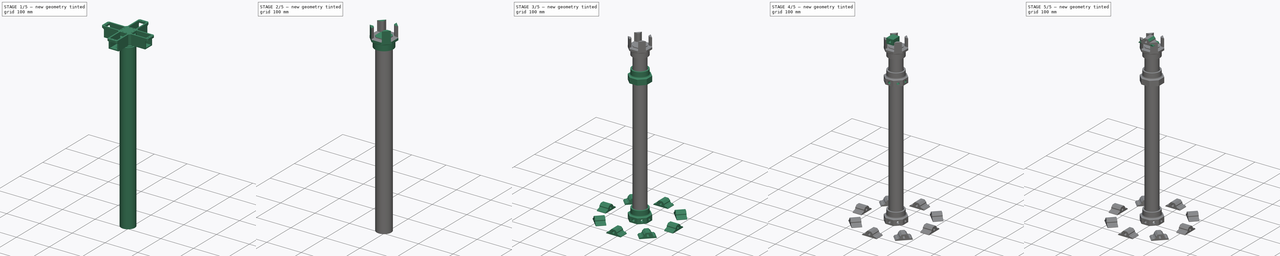
[diagram: build sequence overview — one tinted view per stage of 5, left to right]
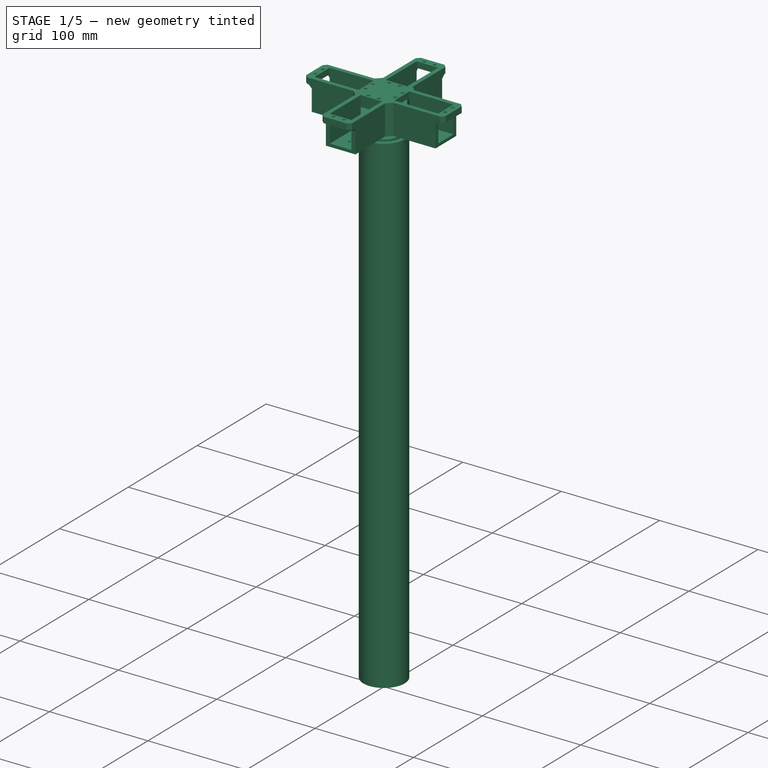
[diagram: stage 1 of 5 — iso view after this stage's code; geometry added in this stage tinted green]
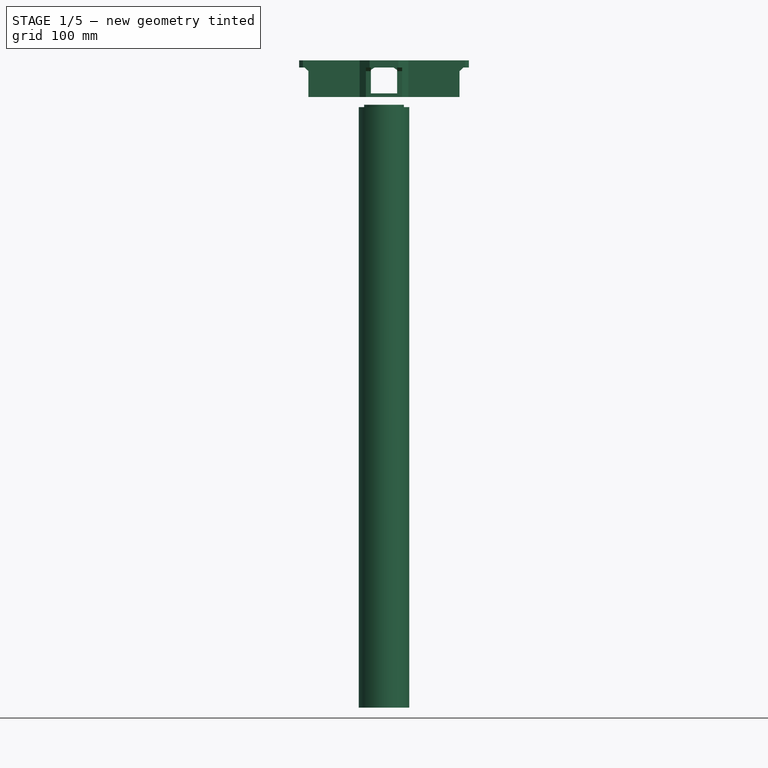
[diagram: stage 1 of 5 — front view after this stage's code; geometry added in this stage tinted green]
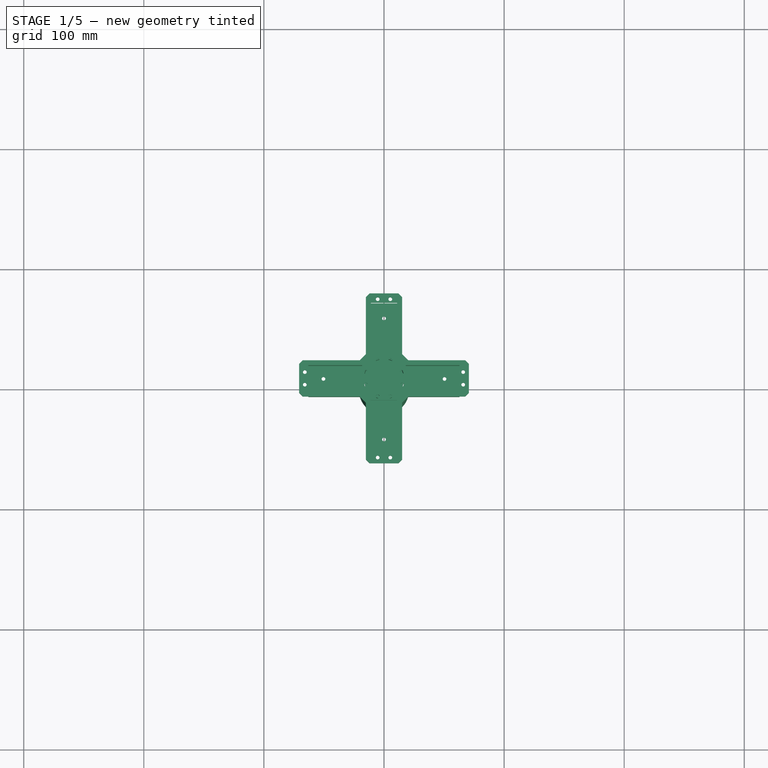
[diagram: stage 1 of 5 — top view after this stage's code; geometry added in this stage tinted green]
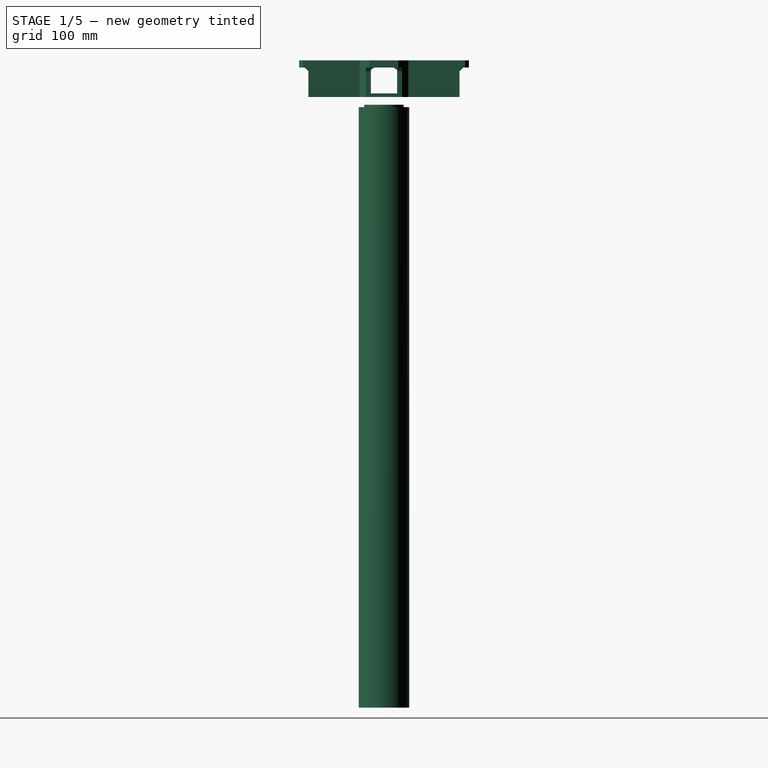
[diagram: stage 1 of 5 — right view after this stage's code; geometry added in this stage tinted green]
FCSTD DOCUMENT  (FreeCAD 0.16R6264 (Git))
Label: support
License: All rights reserved
LicenseURL: http://en.wikipedia.org/wiki/All_rights_reserved
objects: Sketcher::SketchObject×13, Part::Feature×12, PartDesign::Pocket×7, PartDesign::Pad×6, PartDesign::Fillet×5, Part::Cut×2, PartDesign::Chamfer×2, Part::Cylinder×2, Part::FeaturePython×1, Part::MultiFuse×1
note: 64 computed .brp shape members not serialized (recipe doc carries the construction recipe); baked Part::Feature solids carry a one-line shape summary decoded from their .brp

FEATURE [Part::Feature] Pad001007004004002003004004002009  label="Pad001007004004002003004004002016"
  shape: bbox 136 x 136 x 30.5 mm, 95 faces (baked)
FEATURE [Sketcher::SketchObject] Sketch
  Placement = pos=(0,0,-34) rot=(-1,0,0;3.14159rad)
  sketch-geometry (1):
    g0: Circle CenterX=0 CenterY=0 CenterZ=0 NormalX=0 NormalY=0 NormalZ=1 Radius=16.5
  constraints (2):
    c: Coincident(g0,g-1)
    c: Radius(g0) = 16.5
FEATURE [PartDesign::Pad] Pad
  Length = 30
  Length2 = 100
  Placement = pos=(0,0,-34) rot=(-1,0,0;3.14159rad)
  Sketch = -> Sketch
  Type = 0
FEATURE [Part::FeaturePython] Clone  label="Clone of Pad001007004004002003004004002016"  # Draft clone (typed FeaturePython)
  Objects = -> [Pad001007004004002003004004002009]
  Scale = (1.04,1.04,1)
FEATURE [Part::Cylinder] Cylinder  label="Cilindro"
  Angle = 360
  Height = 500
  Placement = pos=(0,0,-536) rot=(0,0,1;0rad)
  Radius = 21
FEATURE [Part::Cylinder] Cylinder001  label="Cilindro001"
  Angle = 360
  Height = 500
  Placement = pos=(0,0,-536) rot=(0,0,1;0rad)
  Radius = 17
FEATURE [Part::Cut] Cut001
  Base = -> Cylinder
  Tool = -> Cylinder001
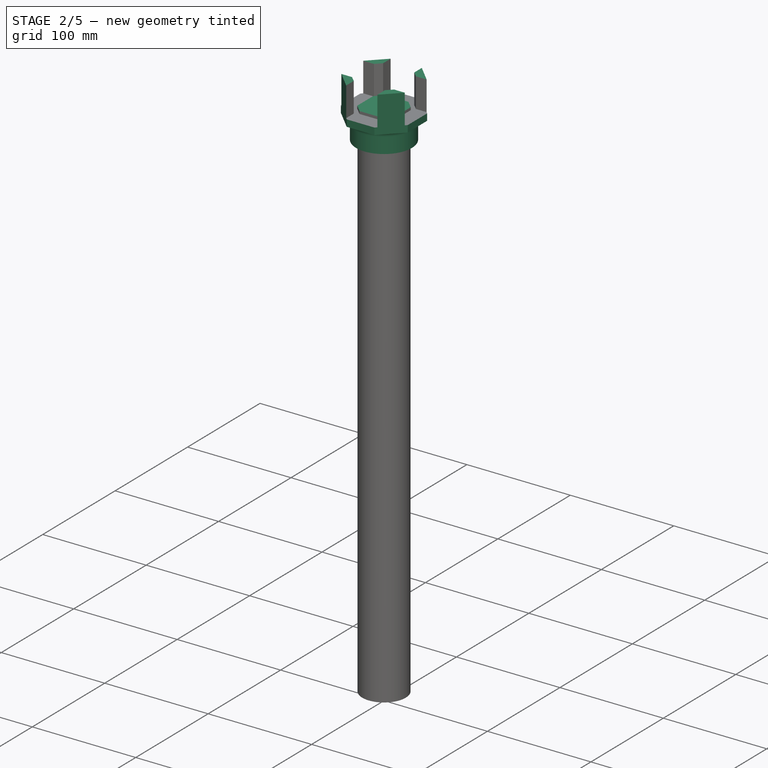
[diagram: stage 2 of 5 — iso view after this stage's code; geometry added in this stage tinted green]
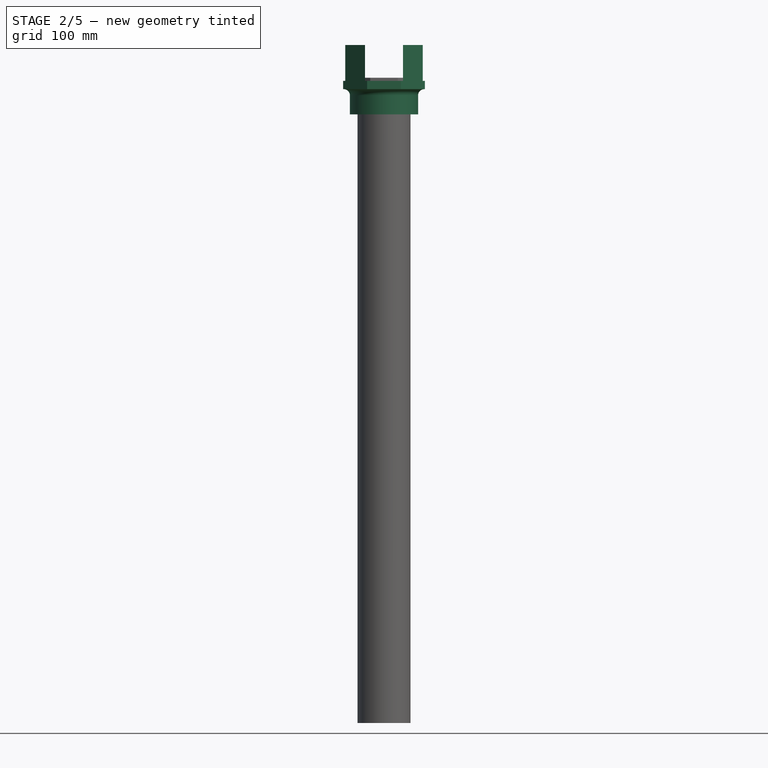
[diagram: stage 2 of 5 — front view after this stage's code; geometry added in this stage tinted green]
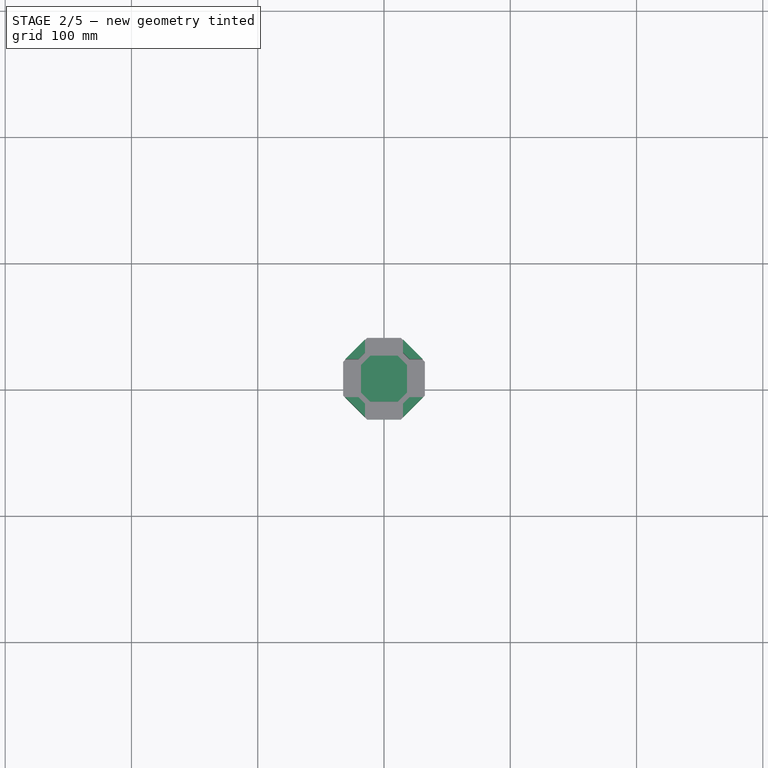
[diagram: stage 2 of 5 — top view after this stage's code; geometry added in this stage tinted green]
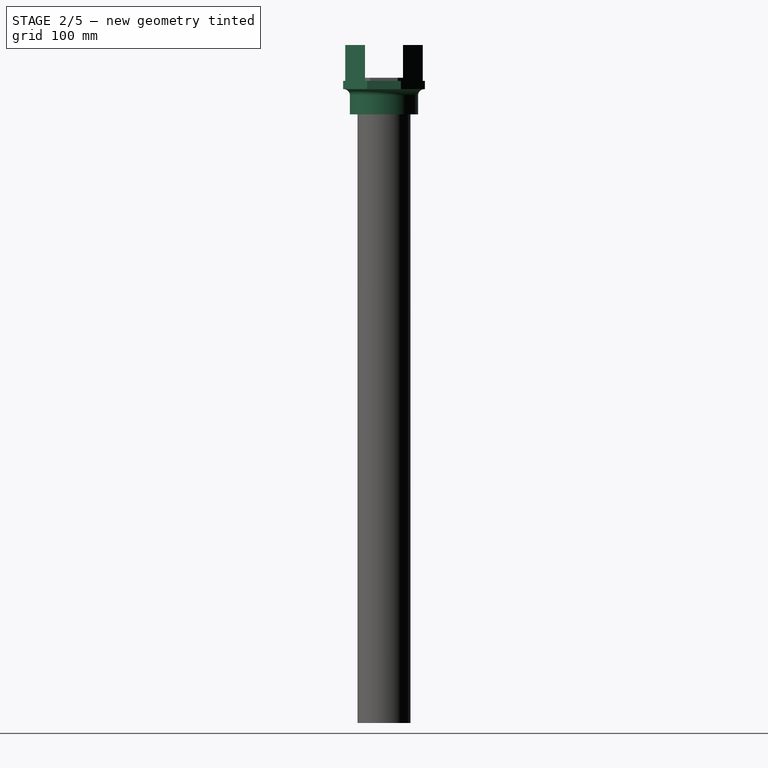
[diagram: stage 2 of 5 — right view after this stage's code; geometry added in this stage tinted green]
FEATURE [Sketcher::SketchObject] Sketch001
  Placement = pos=(0,0,-34) rot=(0,0,1;0rad)
  Support = -> Pad [Face2]
  sketch-geometry (9):
    g0: LineSegment StartX=32.3358 StartY=13.3939 StartZ=0 EndX=13.3939 EndY=32.3358 EndZ=0
    g1: LineSegment StartX=13.3939 StartY=32.3358 StartZ=0 EndX=-13.3939 EndY=32.3358 EndZ=0
    g2: LineSegment StartX=-13.3939 StartY=32.3358 StartZ=0 EndX=-32.3358 EndY=13.3939 EndZ=0
    g3: LineSegment StartX=-32.3358 StartY=13.3939 StartZ=0 EndX=-32.3358 EndY=-13.3939 EndZ=0
    g4: LineSegment StartX=-32.3358 StartY=-13.3939 StartZ=0 EndX=-13.3939 EndY=-32.3358 EndZ=0
    g5: LineSegment StartX=-13.3939 StartY=-32.3358 StartZ=0 EndX=13.3939 EndY=-32.3358 EndZ=0
    g6: LineSegment StartX=13.3939 StartY=-32.3358 StartZ=0 EndX=32.3358 EndY=-13.3939 EndZ=0
    g7: LineSegment StartX=32.3358 StartY=-13.3939 StartZ=0 EndX=32.3358 EndY=13.3939 EndZ=0
    g8: Circle [constr] CenterX=0 CenterY=0 CenterZ=0 NormalX=0 NormalY=0 NormalZ=1 Radius=35
  constraints (20):
    c: Coincident(g0,g1)
    c: Coincident(g1,g2)
    c: Coincident(g2,g3)
    c: Coincident(g3,g4)
    c: Coincident(g4,g5)
    c: Coincident(g5,g6)
    c: Coincident(g6,g7)
    c: Coincident(g7,g0)
    c: Equal(g0, g1-g7) x7
    c: PointOnObject(g0,g8)
    c: PointOnObject(g1,g8)
    c: PointOnObject(g2,g8)
    c: PointOnObject(g3,g8)
    c: PointOnObject(g4,g8)
    c: PointOnObject(g5,g8)
    c: PointOnObject(g6,g8)
    c: PointOnObject(g7,g8)
    c: Coincident(g8,g-1)
    c: Horizontal(g1)
    c: Radius(g8) = 35
FEATURE [PartDesign::Pad] Pad001007004004002003004004002010
  Length = 35
  Length2 = 100
  Placement = pos=(0,0,-34) rot=(-1,0,0;3.14159rad)
  Sketch = -> Sketch001
  Type = 0
FEATURE [Part::Cut] Cut
  Base = -> Pad001007004004002003004004002010
  Tool = -> Clone
FEATURE [Sketcher::SketchObject] Sketch002
  Placement = pos=(0,0,1) rot=(0,0,1;0rad)
  Support = -> Cut [Face59]
  sketch-geometry (16):
    g0: LineSegment StartX=-12.9317 StartY=36.7371 StartZ=0 EndX=-12.9317 EndY=18.9459 EndZ=0
    g1: LineSegment StartX=-12.9317 StartY=18.9459 StartZ=0 EndX=-17.108 EndY=13.9343 EndZ=0
    g2: LineSegment StartX=-17.108 StartY=13.9343 StartZ=0 EndX=-34.2309 EndY=12.4309 EndZ=0
    g3: LineSegment StartX=-34.2309 StartY=12.4309 StartZ=0 EndX=-37.572 EndY=-14.7988 EndZ=0
    g4: LineSegment StartX=-37.572 StartY=-14.7988 StartZ=0 EndX=-18.4444 EndY=-12.9612 EndZ=0
    g5: LineSegment StartX=-18.4444 StartY=-12.9612 StartZ=0 EndX=-12.514 EndY=-20.5621 EndZ=0
    g6: LineSegment StartX=-12.514 StartY=-20.5621 StartZ=0 EndX=-13.0152 EndY=-34.5946 EndZ=0
    g7: LineSegment StartX=-13.0152 StartY=-34.5946 StartZ=0 EndX=13.1286 EndY=-36.5992 EndZ=0
    g8: LineSegment StartX=13.1286 StartY=-36.5992 StartZ=0 EndX=13.1286 EndY=-19.5598 EndZ=0
    g9: LineSegment StartX=13.1286 StartY=-19.5598 StartZ=0 EndX=18.6414 EndY=-13.5459 EndZ=0
    g10: LineSegment StartX=18.6414 StartY=-13.5459 StartZ=0 EndX=40.3582 EndY=-13.5459 EndZ=0
    g11: LineSegment StartX=40.3582 StartY=-13.5459 StartZ=0 EndX=40.3582 EndY=12.5979 EndZ=0
    g12: LineSegment StartX=40.3582 StartY=12.5979 StartZ=0 EndX=19.3096 EndY=12.5979 EndZ=0
    g13: LineSegment StartX=19.3096 StartY=12.5979 StartZ=0 EndX=12.5439 EndY=18.1942 EndZ=0
    g14: LineSegment StartX=12.5439 StartY=18.1942 StartZ=0 EndX=12.5439 EndY=35.5677 EndZ=0
    g15: LineSegment StartX=12.5439 StartY=35.5677 StartZ=0 EndX=-12.9317 EndY=36.7371 EndZ=0
  constraints (22):
    c: Vertical(g0)
    c: Coincident(g0,g1)
    c: Coincident(g1,g2)
    c: Coincident(g2,g3)
    c: Coincident(g3,g4)
    c: Coincident(g4,g5)
    c: Coincident(g5,g6)
    c: Coincident(g6,g7)
    c: Coincident(g7,g8)
    c: Vertical(g8)
    c: Coincident(g8,g9)
    c: Coincident(g9,g10)
    c: Horizontal(g10)
    c: Coincident(g10,g11)
    c: Vertical(g11)
    c: Coincident(g11,g12)
    c: Horizontal(g12)
    c: Coincident(g12,g13)
    c: Coincident(g13,g14)
    c: Vertical(g14)
    c: Coincident(g14,g15)
    c: Coincident(g15,g0)
FEATURE [PartDesign::Pocket] Pocket
  Length = 26
  Sketch = -> Sketch002
  Type = 0
FEATURE [Sketcher::SketchObject] Sketch003
  Placement = pos=(0,0,-34) rot=(1,0,0;3.14159rad)
  Support = -> Pocket [Face3]
  sketch-geometry (2):
    g0: Circle CenterX=0 CenterY=0 CenterZ=0 NormalX=0 NormalY=0 NormalZ=1 Radius=22
    g1: Circle CenterX=0 CenterY=0 CenterZ=0 NormalX=0 NormalY=0 NormalZ=1 Radius=27
  constraints (4):
    c: Coincident(g0,g-1)
    c: Radius(g0) = 22
    c: Coincident(g1,g-1)
    c: Radius(g1) = 27
FEATURE [PartDesign::Pad] Pad001007004004002003004004002011
  Length = 20
  Length2 = 100
  Sketch = -> Sketch003
  Type = 0
FEATURE [PartDesign::Fillet] Fillet
  Base = -> Pad001007004004002003004004002011 [Edge8]
  Radius = 5
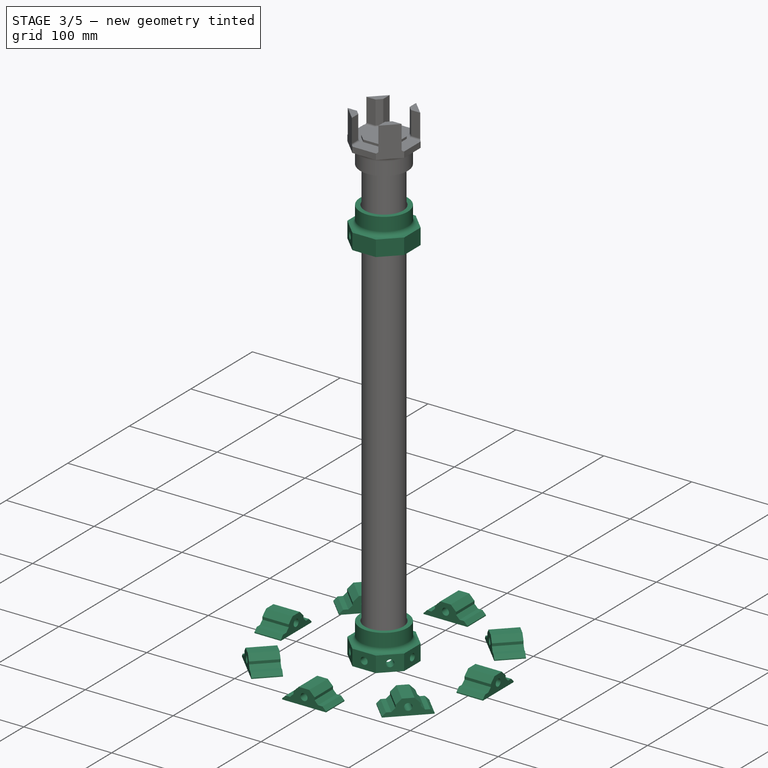
[diagram: stage 3 of 5 — iso view after this stage's code; geometry added in this stage tinted green]
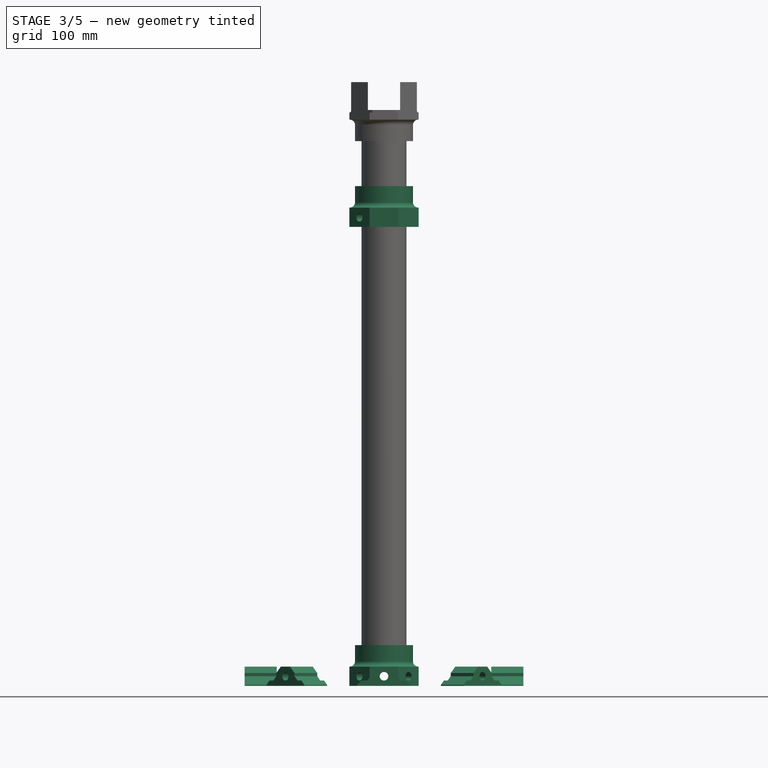
[diagram: stage 3 of 5 — front view after this stage's code; geometry added in this stage tinted green]
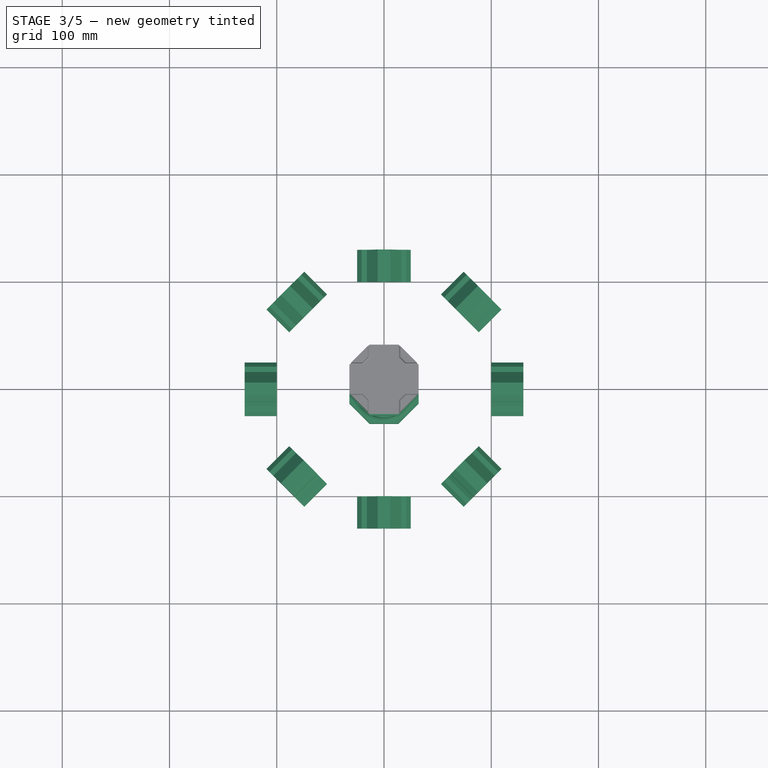
[diagram: stage 3 of 5 — top view after this stage's code; geometry added in this stage tinted green]
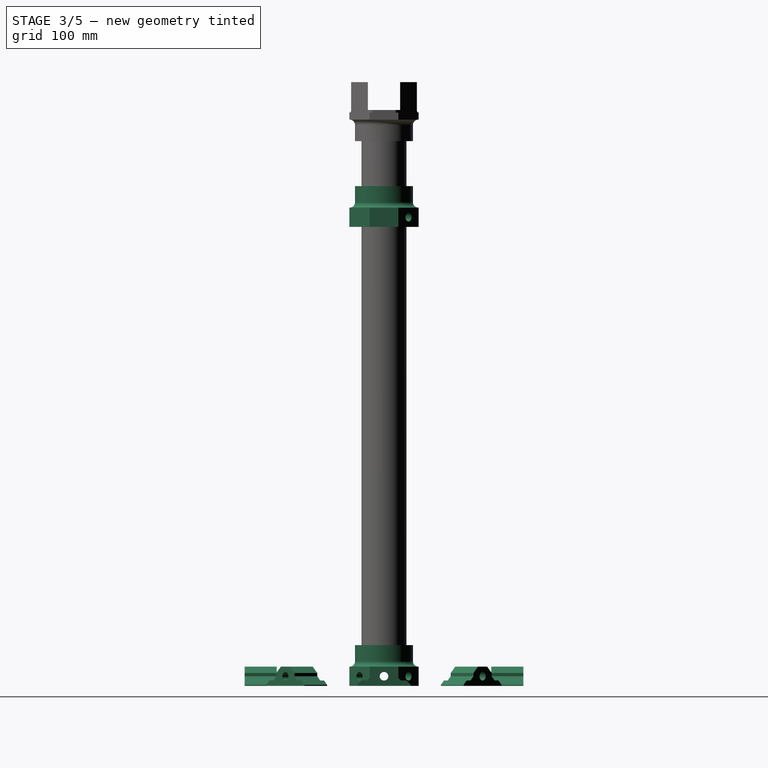
[diagram: stage 3 of 5 — right view after this stage's code; geometry added in this stage tinted green]
FEATURE [PartDesign::Fillet] Fillet001
  Base = -> Fillet [Edge55,Edge54,Edge53,Edge52,Edge51,Edge50,Edge61,Edge60,Edge59,Edge58,Edge56,Edge57]
  Radius = 2
FEATURE [PartDesign::Fillet] Fillet002
  Base = -> Fillet001 [Edge133,Edge131]
  Radius = 2
FEATURE [PartDesign::Fillet] Fillet003
  Base = -> Fillet002 [Edge15]
  Radius = 6
FEATURE [PartDesign::Fillet] Fillet004
  Base = -> Fillet003 [Edge12]
  Radius = 2
FEATURE [Part::Feature] Pad001007004004002003004004002012001  label="Pad001007004004002003004004002017"
  shape: bbox 76.96 x 76.96 x 48 mm, 20 faces (baked)
FEATURE [Sketcher::SketchObject] Sketch007
  ExternalGeometry = -> [Pad001007004004002003004004002012001]
  Placement = pos=(-22.8649,-22.8649,0) rot=(0.862856,-0.357407,-0.357407;1.71777rad)
  Support = -> Pad001007004004002003004004002012001 [Face16]
  sketch-geometry (1):
    g0: Circle CenterX=0 CenterY=-125 CenterZ=0 NormalX=0 NormalY=0 NormalZ=1 Radius=4
  constraints (3):
    c: PointOnObject(g0,g-2)
    c: Radius(g0) = 4
    c: DistanceY(g0,g-3) = 9
FEATURE [PartDesign::Pocket] Pocket002
  Length = 500
  Sketch = -> Sketch007
  Type = 0
FEATURE [Part::Feature] Pocket006001  label="Pocket007"
  Placement = pos=(0,0,-428) rot=(0,0,1;0rad)
  shape: bbox 76.96 x 76.96 x 48 mm, 37 faces (baked)
FEATURE [Part::Feature] Chamfer001001  label="Chamfer002"
  Placement = pos=(0,-100,-553) rot=(0,0,1;0rad)
  shape: bbox 50 x 30 x 18 mm, 17 faces (baked)
FEATURE [Part::Feature] Chamfer001002  label="Chamfer003"
  Placement = pos=(70.7107,-70.7107,-553) rot=(0,0,1;0.785398rad)
  shape: bbox 56.57 x 56.57 x 18 mm, 17 faces (baked)
FEATURE [Part::Feature] Chamfer001003  label="Chamfer001005"
  Placement = pos=(100,0,-553) rot=(0,0,1;1.5708rad)
  shape: bbox 30 x 50 x 18 mm, 17 faces (baked)
FEATURE [Part::Feature] Chamfer001004  label="Chamfer001006"
  Placement = pos=(70.7107,70.7107,-553) rot=(0,0,1;2.35619rad)
  shape: bbox 56.57 x 56.57 x 18 mm, 17 faces (baked)
FEATURE [Part::Feature] Chamfer001005  label="Chamfer001011"
  Placement = pos=(0,100,-553) rot=(0,0,1;3.14159rad)
  shape: bbox 50 x 30 x 18 mm, 17 faces (baked)
FEATURE [Part::Feature] Chamfer001006  label="Chamfer001012"
  Placement = pos=(-70.7107,70.7107,-553) rot=(0,0,1;3.92699rad)
  shape: bbox 56.57 x 56.57 x 18 mm, 17 faces (baked)
FEATURE [Part::Feature] Chamfer001007  label="Chamfer001013"
  Placement = pos=(-100,0,-553) rot=(0,0,1;4.71239rad)
  shape: bbox 30 x 50 x 18 mm, 17 faces (baked)
FEATURE [Part::Feature] Chamfer001008  label="Chamfer001014"
  Placement = pos=(-70.7107,-70.7107,-553) rot=(0,0,1;5.49779rad)
  shape: bbox 56.57 x 56.57 x 18 mm, 17 faces (baked)
FEATURE [Part::MultiFuse] Fusion  label="support"
  Shapes = -> [Fillet004,Cut001,Chamfer001002,Chamfer001006,Pocket006001,Chamfer001003,Chamfer001004,Chamfer001001,Chamfer001005,Chamfer001008,Chamfer001007]
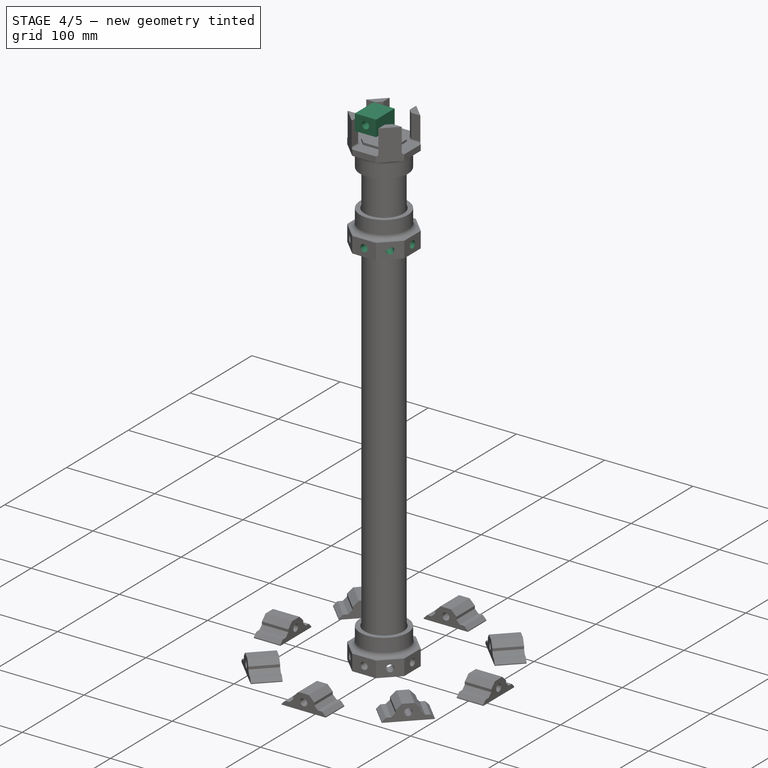
[diagram: stage 4 of 5 — iso view after this stage's code; geometry added in this stage tinted green]
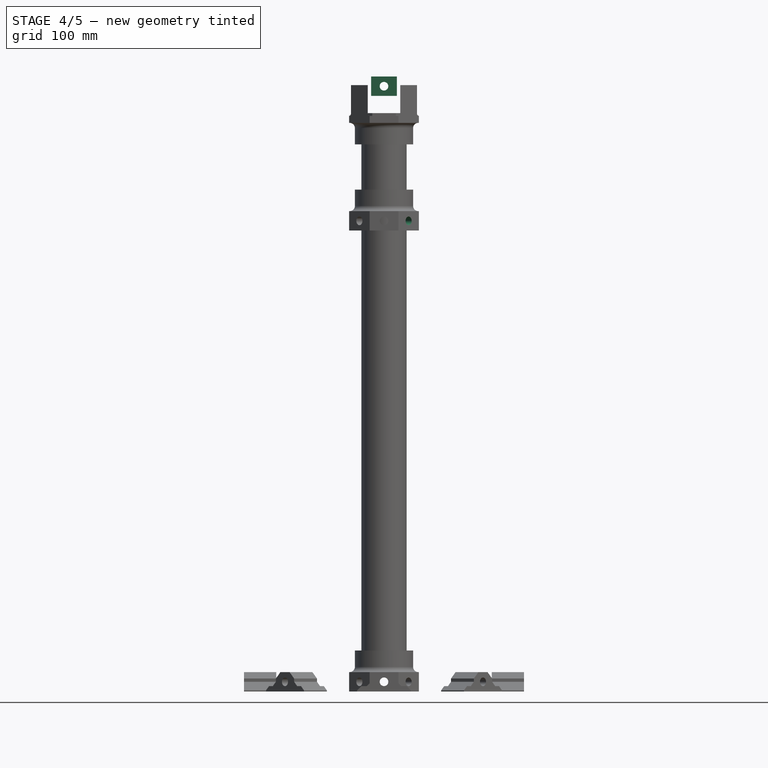
[diagram: stage 4 of 5 — front view after this stage's code; geometry added in this stage tinted green]
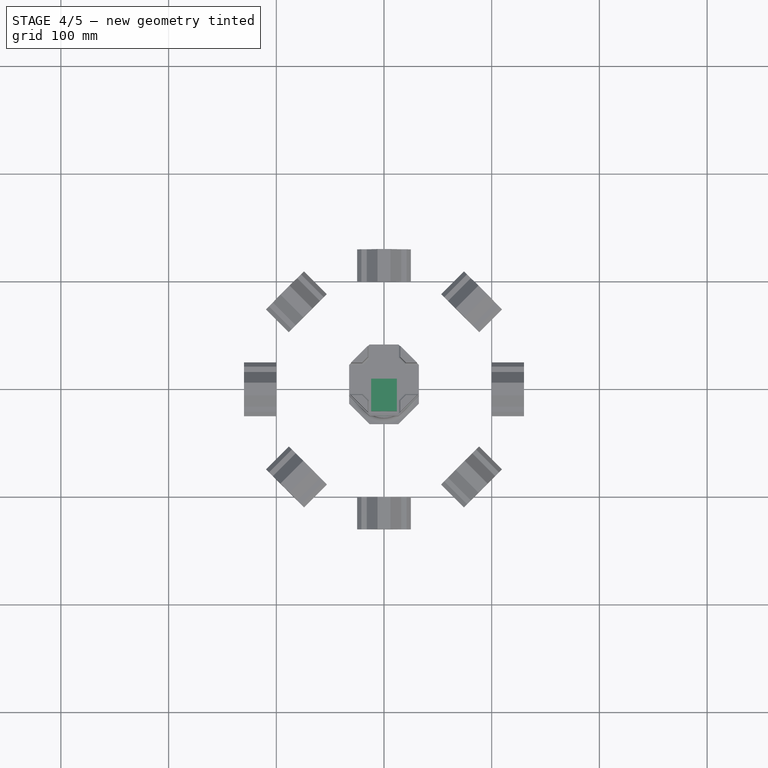
[diagram: stage 4 of 5 — top view after this stage's code; geometry added in this stage tinted green]
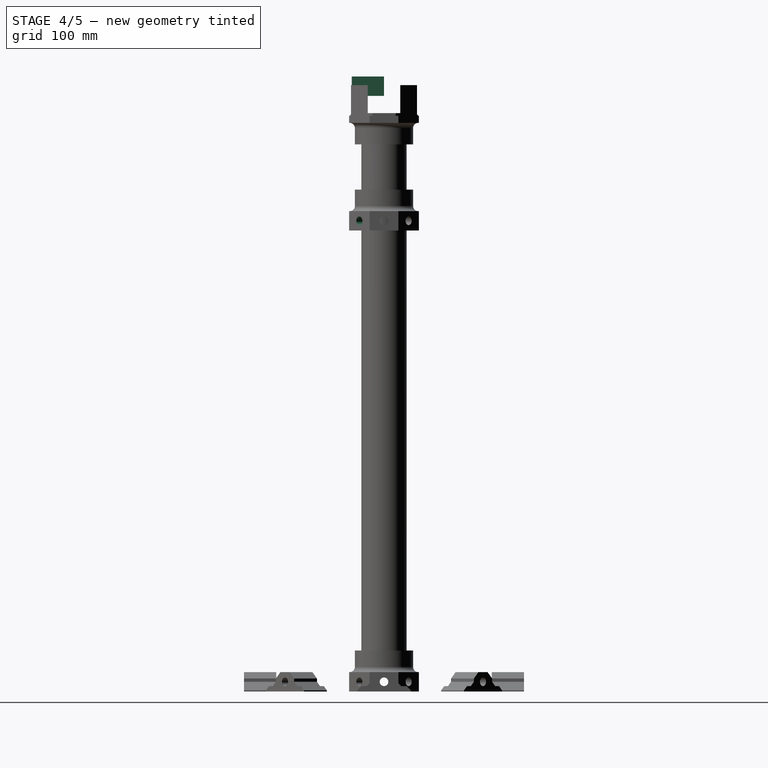
[diagram: stage 4 of 5 — right view after this stage's code; geometry added in this stage tinted green]
FEATURE [Sketcher::SketchObject] Sketch008
  ExternalGeometry = -> [Pocket002]
  Placement = pos=(-22.8649,22.8649,0) rot=(-0.281085,0.678598,0.678598;3.68962rad)
  Support = -> Pocket002 [Face4]
  sketch-geometry (1):
    g0: Circle CenterX=0 CenterY=-125 CenterZ=0 NormalX=0 NormalY=0 NormalZ=1 Radius=4
  constraints (3):
    c: PointOnObject(g0,g-2)
    c: Radius(g0) = 4
    c: Distance(g0,g-3) = 9
FEATURE [PartDesign::Pocket] Pocket003
  Length = 500
  Sketch = -> Sketch008
  Type = 0
FEATURE [Sketcher::SketchObject] Sketch009
  ExternalGeometry = -> [Pocket003]
  Placement = pos=(4.3e-11,32.3358,0) rot=(0,0.707107,0.707107;3.14159rad)
  Support = -> Pocket003 [Face3]
  sketch-geometry (1):
    g0: Circle CenterX=0 CenterY=-125 CenterZ=0 NormalX=0 NormalY=0 NormalZ=1 Radius=4
  constraints (3):
    c: PointOnObject(g0,g-2)
    c: Distance(g0,g-3) = 9
    c: Radius(g0) = 4
FEATURE [PartDesign::Pocket] Pocket004
  Length = 500
  Sketch = -> Sketch009
  Type = 0
FEATURE [Sketcher::SketchObject] Sketch010
  ExternalGeometry = -> [Pocket004]
  Placement = pos=(32.3358,0,0) rot=(0.57735,0.57735,0.57735;2.0944rad)
  Support = -> Pocket004 [Face9]
  sketch-geometry (1):
    g0: Circle CenterX=0 CenterY=-125 CenterZ=0 NormalX=0 NormalY=0 NormalZ=1 Radius=4
  constraints (3):
    c: PointOnObject(g0,g-2)
    c: Distance(g0,g-3) = 9
    c: Radius(g0) = 4
FEATURE [PartDesign::Pocket] Pocket005
  Length = 500
  Sketch = -> Sketch010
  Type = 0
FEATURE [Sketcher::SketchObject] Sketch011
  Placement = pos=(0,0,0) rot=(-1,0,0;4.71239rad)
  sketch-geometry (5):
    g0: Circle CenterX=0 CenterY=0 CenterZ=0 NormalX=0 NormalY=0 NormalZ=1 Radius=4
    g1: LineSegment StartX=-12 StartY=9 StartZ=0 EndX=12 EndY=9 EndZ=0
    g2: LineSegment StartX=12 StartY=9 StartZ=0 EndX=12 EndY=-9 EndZ=0
    g3: LineSegment StartX=12 StartY=-9 StartZ=0 EndX=-12 EndY=-9 EndZ=0
    g4: LineSegment StartX=-12 StartY=-9 StartZ=0 EndX=-12 EndY=9 EndZ=0
  constraints (14):
    c: Coincident(g0,g-1)
    c: Radius(g0) = 4
    c: Coincident(g1,g2)
    c: Coincident(g2,g3)
    c: Coincident(g3,g4)
    c: Coincident(g4,g1)
    c: Horizontal(g1)
    c: Horizontal(g3)
    c: Vertical(g2)
    c: Vertical(g4)
    c: Distance(g-1,g3) = 9
    c: Symmetric(g1,g2,g-1)
    c: Symmetric(g1,g1,g-2)
    c: Distance(g1) = 24
FEATURE [PartDesign::Pad] Pad001007004004002003004004002012002
  Length = 30
  Length2 = 100
  Placement = pos=(0,0,0) rot=(-1,0,0;4.71239rad)
  Sketch = -> Sketch011
  Type = 0
FEATURE [Sketcher::SketchObject] Sketch013
  ExternalGeometry = -> [Pocket005]
  Placement = pos=(0,0,-134) rot=(1,0,0;3.14159rad)
  Support = -> Pocket005 [Face1]
  sketch-geometry (9):
    g0: LineSegment StartX=20.3253 StartY=8.41904 StartZ=0 EndX=8.41904 EndY=20.3253 EndZ=0
    g1: LineSegment StartX=8.41904 StartY=20.3253 StartZ=0 EndX=-8.41904 EndY=20.3253 EndZ=0
    g2: LineSegment StartX=-8.41904 StartY=20.3253 StartZ=0 EndX=-20.3253 EndY=8.41904 EndZ=0
    g3: LineSegment StartX=-20.3253 StartY=8.41904 StartZ=0 EndX=-20.3253 EndY=-8.41904 EndZ=0
    g4: LineSegment StartX=-20.3253 StartY=-8.41904 StartZ=0 EndX=-8.41904 EndY=-20.3253 EndZ=0
    g5: LineSegment StartX=-8.41904 StartY=-20.3253 StartZ=0 EndX=8.41904 EndY=-20.3253 EndZ=0
    g6: LineSegment StartX=8.41904 StartY=-20.3253 StartZ=0 EndX=20.3253 EndY=-8.41904 EndZ=0
    g7: LineSegment StartX=20.3253 StartY=-8.41904 StartZ=0 EndX=20.3253 EndY=8.41904 EndZ=0
    g8: Circle [constr] CenterX=0 CenterY=0 CenterZ=0 NormalX=0 NormalY=0 NormalZ=1 Radius=22
  constraints (20):
    c: Coincident(g0,g1)
    c: Coincident(g1,g2)
    c: Coincident(g2,g3)
    c: Coincident(g3,g4)
    c: Coincident(g4,g5)
    c: Coincident(g5,g6)
    c: Coincident(g6,g7)
    c: Coincident(g7,g0)
    c: Equal(g0, g1-g7) x7
    c: PointOnObject(g0,g8)
    c: PointOnObject(g1,g8)
    c: PointOnObject(g2,g8)
    c: PointOnObject(g3,g8)
    c: PointOnObject(g4,g8)
    c: PointOnObject(g5,g8)
    c: PointOnObject(g6,g8)
    c: PointOnObject(g7,g8)
    c: Coincident(g8,g-1)
    c: Vertical(g7)
    c: Radius(g8) = 22
FEATURE [PartDesign::Pocket] Pocket006
  Length = 15
  Sketch = -> Sketch013
  Type = 0
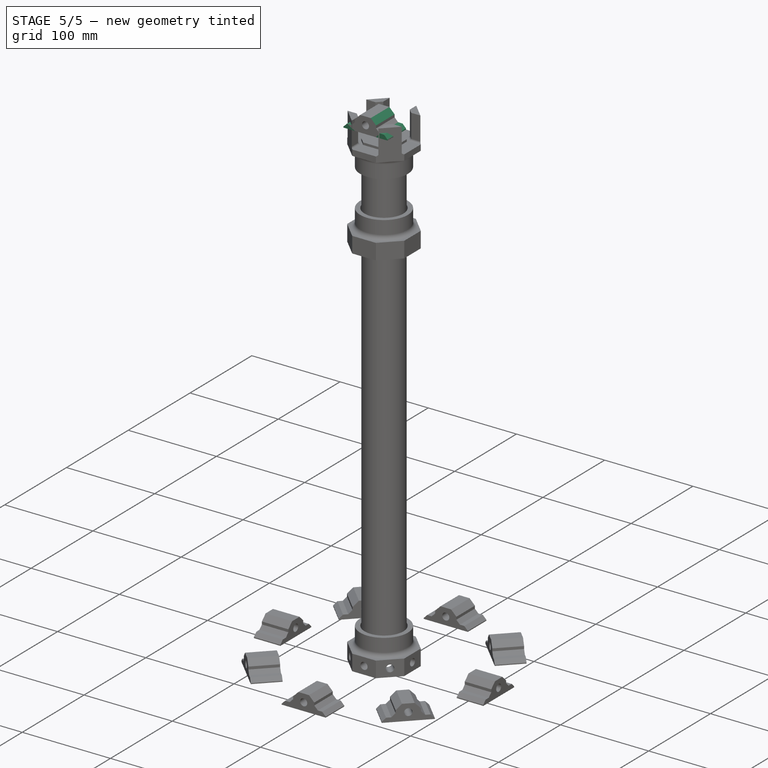
[diagram: stage 5 of 5 — iso view after this stage's code; geometry added in this stage tinted green]
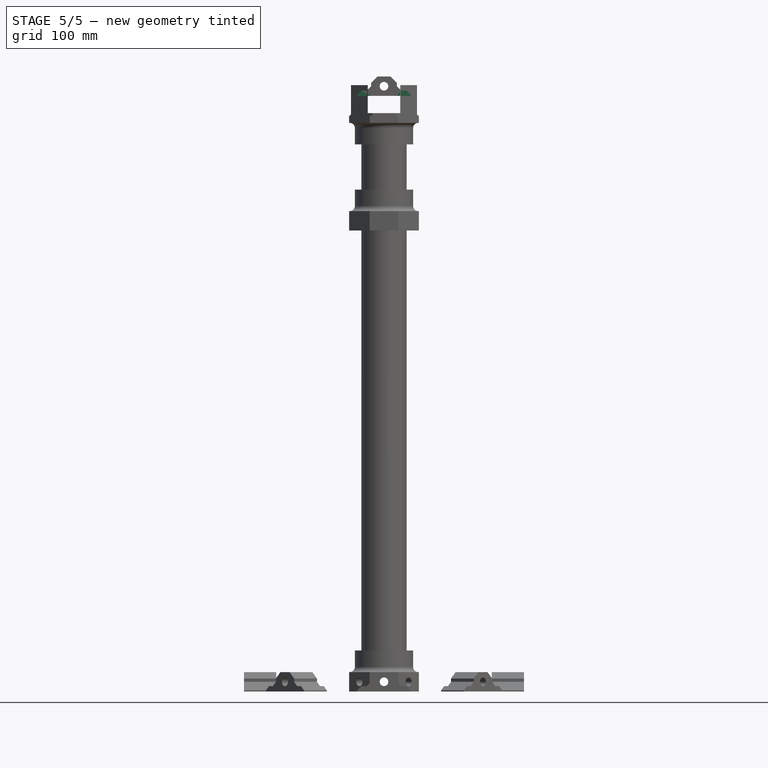
[diagram: stage 5 of 5 — front view after this stage's code; geometry added in this stage tinted green]
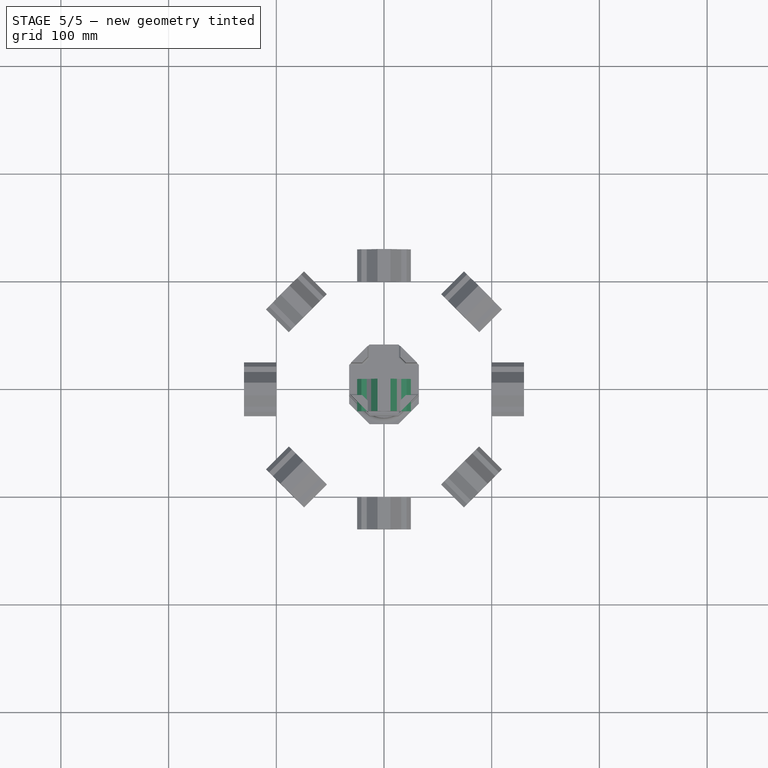
[diagram: stage 5 of 5 — top view after this stage's code; geometry added in this stage tinted green]
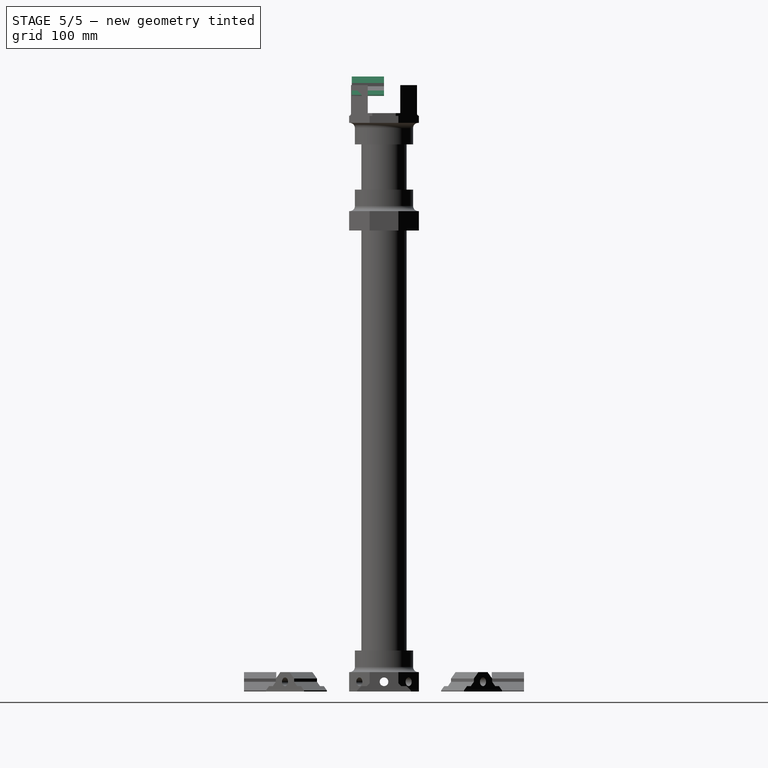
[diagram: stage 5 of 5 — right view after this stage's code; geometry added in this stage tinted green]
FEATURE [Part::Feature] Fillet003001  label="Fillet005"
  Placement = pos=(0,0,-150) rot=(1,0,0;3.14159rad)
  shape: bbox 135.2 x 135.2 x 67 mm, 57 faces (baked)
FEATURE [Sketcher::SketchObject] Sketch004
  Placement = pos=(0,0,-125) rot=(1,0,0;3.14159rad)
  Support = -> Fillet003001 [Face57]
  sketch-geometry (4):
    g0: LineSegment StartX=-45.824 StartY=56.9778 StartZ=0 EndX=63.2945 EndY=56.9778 EndZ=0
    g1: LineSegment StartX=63.2945 StartY=56.9778 StartZ=0 EndX=63.2945 EndY=-55.3008 EndZ=0
    g2: LineSegment StartX=63.2945 StartY=-55.3008 StartZ=0 EndX=-45.824 EndY=-55.3008 EndZ=0
    g3: LineSegment StartX=-45.824 StartY=-55.3008 StartZ=0 EndX=-45.824 EndY=56.9778 EndZ=0
  constraints (8):
    c: Coincident(g0,g1)
    c: Coincident(g1,g2)
    c: Coincident(g2,g3)
    c: Coincident(g3,g0)
    c: Horizontal(g0)
    c: Horizontal(g2)
    c: Vertical(g1)
    c: Vertical(g3)
FEATURE [PartDesign::Pocket] Pocket001
  Length = 2.6
  Placement = pos=(0,0,-150) rot=(1,0,0;3.14159rad)
  Sketch = -> Sketch004
  Type = 0
FEATURE [Sketcher::SketchObject] Sketch006
  ExternalGeometry = -> [Pocket001]
  Placement = pos=(0,0,-116) rot=(0,0,1;0rad)
  Support = -> Pocket001 [Face11]
  sketch-geometry (9):
    g0: LineSegment StartX=32.3358 StartY=13.3939 StartZ=0 EndX=13.3939 EndY=32.3358 EndZ=0
    g1: LineSegment StartX=13.3939 StartY=32.3358 StartZ=0 EndX=-13.3939 EndY=32.3358 EndZ=0
    g2: LineSegment StartX=-13.3939 StartY=32.3358 StartZ=0 EndX=-32.3358 EndY=13.3939 EndZ=0
    g3: LineSegment StartX=-32.3358 StartY=13.3939 StartZ=0 EndX=-32.3358 EndY=-13.3939 EndZ=0
    g4: LineSegment StartX=-32.3358 StartY=-13.3939 StartZ=0 EndX=-13.3939 EndY=-32.3358 EndZ=0
    g5: LineSegment StartX=-13.3939 StartY=-32.3358 StartZ=0 EndX=13.3939 EndY=-32.3358 EndZ=0
    g6: LineSegment StartX=13.3939 StartY=-32.3358 StartZ=0 EndX=32.3358 EndY=-13.3939 EndZ=0
    g7: LineSegment StartX=32.3358 StartY=-13.3939 StartZ=0 EndX=32.3358 EndY=13.3939 EndZ=0
    g8: Circle [constr] CenterX=0 CenterY=0 CenterZ=0 NormalX=0 NormalY=0 NormalZ=1 Radius=35
  constraints (20):
    c: Coincident(g0,g1)
    c: Coincident(g1,g2)
    c: Coincident(g2,g3)
    c: Coincident(g3,g4)
    c: Coincident(g4,g5)
    c: Coincident(g5,g6)
    c: Coincident(g6,g7)
    c: Coincident(g7,g0)
    c: Equal(g0, g1-g7) x7
    c: PointOnObject(g0,g8)
    c: PointOnObject(g1,g8)
    c: PointOnObject(g2,g8)
    c: PointOnObject(g3,g8)
    c: PointOnObject(g4,g8)
    c: PointOnObject(g5,g8)
    c: PointOnObject(g6,g8)
    c: PointOnObject(g7,g8)
    c: Coincident(g8,g-1)
    c: Vertical(g7)
    c: Equal(g-3,g7)
FEATURE [PartDesign::Pad] Pad001007004004002003004004002012
  Length = 18
  Length2 = 100
  Placement = pos=(0,0,-150) rot=(1,0,0;3.14159rad)
  Reversed = true
  Sketch = -> Sketch006
  Type = 0
FEATURE [PartDesign::Chamfer] Chamfer
  Base = -> Pad001007004004002003004004002012002 [Edge2,Edge1]
  Placement = pos=(0,0,0) rot=(-1,0,0;4.71239rad)
  Size = 6
FEATURE [Sketcher::SketchObject] Sketch012
  ExternalGeometry = -> [Chamfer]
  Placement = pos=(0,0,-9) rot=(1,0,0;3.14159rad)
  Support = -> Chamfer [Face8]
  sketch-geometry (4):
    g0: LineSegment StartX=-25 StartY=30 StartZ=0 EndX=25 EndY=30 EndZ=0
    g1: LineSegment StartX=25 StartY=30 StartZ=0 EndX=25 EndY=0 EndZ=0
    g2: LineSegment StartX=25 StartY=0 StartZ=0 EndX=-25 EndY=0 EndZ=0
    g3: LineSegment StartX=-25 StartY=0 StartZ=0 EndX=-25 EndY=30 EndZ=0
  constraints (12):
    c: Coincident(g0,g1)
    c: Coincident(g1,g2)
    c: Coincident(g2,g3)
    c: Coincident(g3,g0)
    c: Horizontal(g0)
    c: Horizontal(g2)
    c: Vertical(g1)
    c: Vertical(g3)
    c: PointOnObject(g-1,g2)
    c: PointOnObject(g-3,g0)
    c: Symmetric(g0,g0,g-2)
    c: Distance(g0) = 50
FEATURE [PartDesign::Pad] Pad001007004004002003004004002012003
  Length = 5
  Length2 = 100
  Placement = pos=(0,0,0) rot=(-1,0,0;4.71239rad)
  Reversed = true
  Sketch = -> Sketch012
  Type = 0
FEATURE [PartDesign::Chamfer] Chamfer001
  Base = -> Pad001007004004002003004004002012003 [Edge47,Edge12,Edge4,Edge50]
  Placement = pos=(0,0,0) rot=(-1,0,0;4.71239rad)
  Size = 4
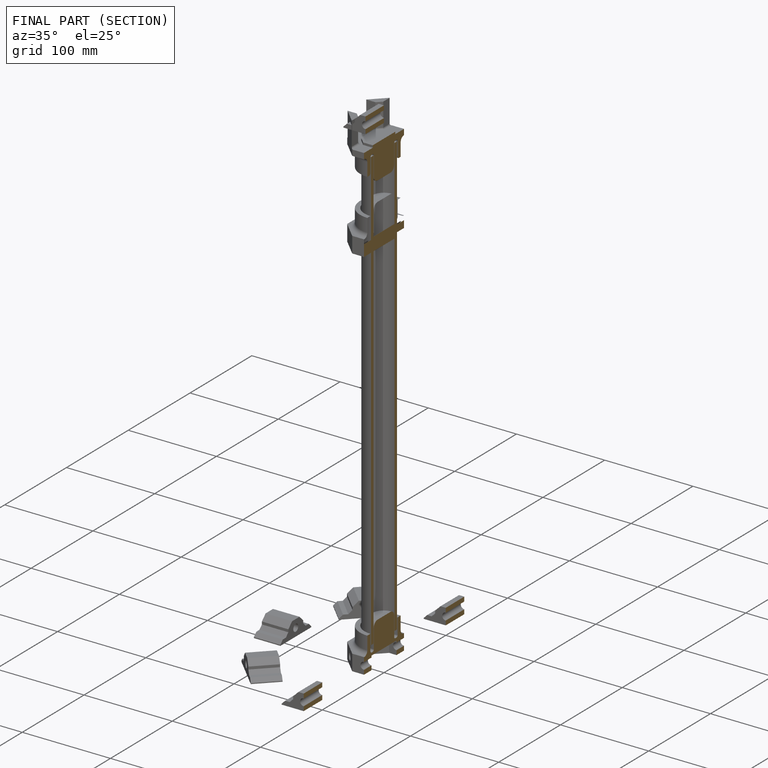
[diagram: finished part — half-section view (interior)]
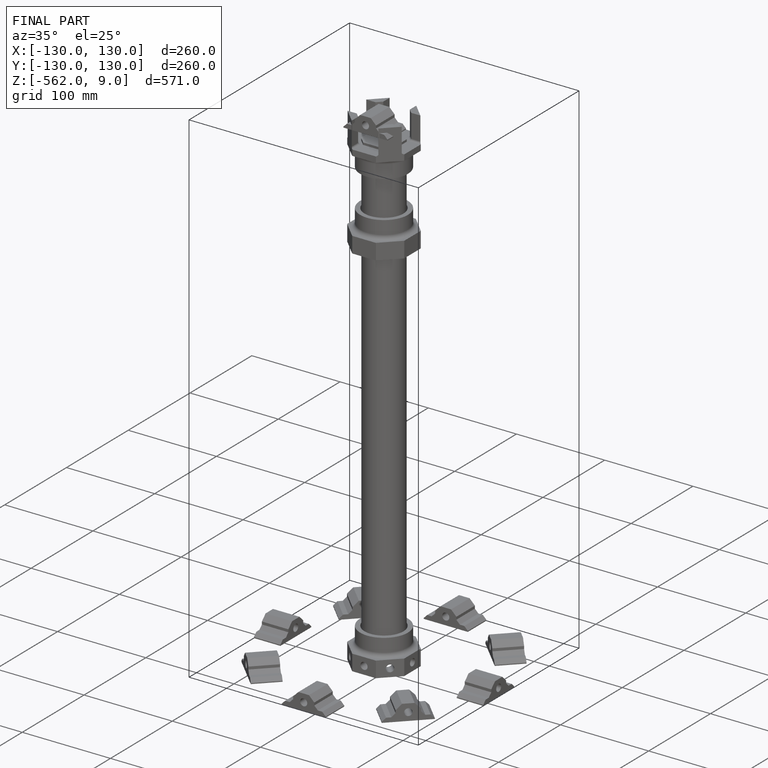
[diagram: finished part — iso view with bounding-box wireframe]
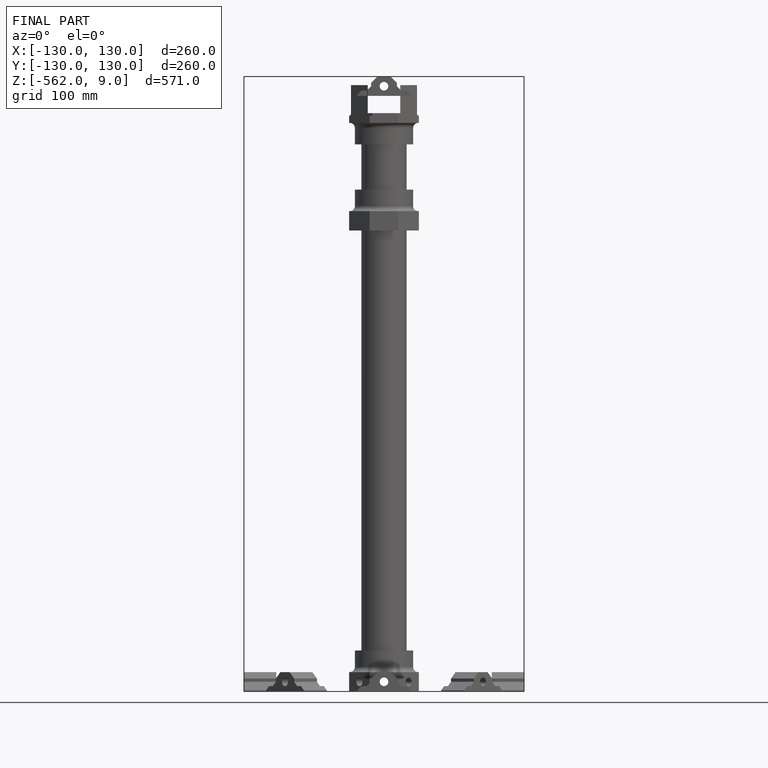
[diagram: finished part — front view with bounding-box wireframe]
